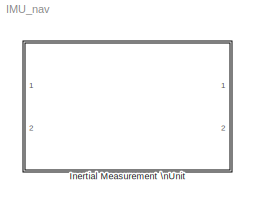
MODEL IMU_nav
KIND model
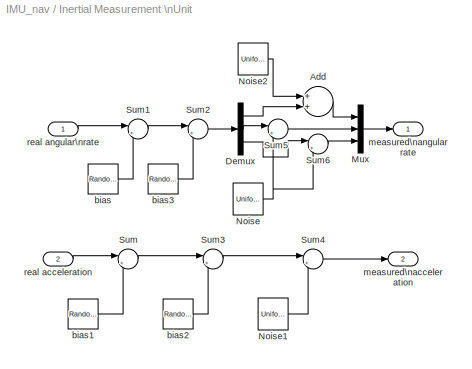
BLOCK [SubSystem] Inertial Measurement \nUnit
  FunctionWithSeparateData = off
  MaskHideContents = off
  MinAlgLoopOccurrences = off
  Opaque = off
  Ports = [2, 2]
  PropExecContextOutsideSubsystem = off
  RTWSystemCode = Auto
  RequestExecContextInheritance = off
  SID = 1
BLOCK [Sum] Inertial Measurement \nUnit/Add
  InputSameDT = off
  OutDataTypeStr = Inherit: Inherit via internal rule
  Ports = [2, 1]
  SID = 30
  SaturateOnIntegerOverflow = off
BLOCK [Demux] Inertial Measurement \nUnit/Demux
  DisplayOption = bar
  Outputs = 3
  Ports = [1, 3]
  SID = 11
BLOCK [Mux] Inertial Measurement \nUnit/Mux
  DisplayOption = bar
  Inputs = 3
  Ports = [3, 1]
  SID = 12
BLOCK [UniformRandomNumber] Inertial Measurement \nUnit/Noise
  Maximum = GYRO.noise_pith
  Minimum = -GYRO.noise_pith
  SID = 6
  SampleTime = TSample
  Seed = 346
BLOCK [UniformRandomNumber] Inertial Measurement \nUnit/Noise1
  Maximum = ACCEL.noise
  Minimum = -ACCEL.noise
  SID = 17
  SampleTime = TSample
  Seed = 134
BLOCK [UniformRandomNumber] Inertial Measurement \nUnit/Noise2
  Maximum = GYRO.noise_roll
  Minimum = -GYRO.noise_roll
  SID = 28
  SampleTime = TSample
  Seed = 98
BLOCK [Sum] Inertial Measurement \nUnit/Sum
  IconShape = round
  InputSameDT = off
  Inputs = |++
  OutDataTypeStr = Inherit: Inherit via internal rule
  Ports = [2, 1]
  SID = 8
  SaturateOnIntegerOverflow = off
BLOCK [Sum] Inertial Measurement \nUnit/Sum1
  IconShape = round
  InputSameDT = off
  Inputs = |++
  OutDataTypeStr = Inherit: Inherit via internal rule
  Ports = [2, 1]
  SID = 9
  SaturateOnIntegerOverflow = off
BLOCK [Sum] Inertial Measurement \nUnit/Sum2
  IconShape = round
  InputSameDT = off
  Inputs = |++
  OutDataTypeStr = Inherit: Inherit via internal rule
  Ports = [2, 1]
  SID = 10
  SaturateOnIntegerOverflow = off
BLOCK [Sum] Inertial Measurement \nUnit/Sum3
  IconShape = round
  InputSameDT = off
  Inputs = |++
  OutDataTypeStr = Inherit: Inherit via internal rule
  Ports = [2, 1]
  SID = 13
  SaturateOnIntegerOverflow = off
BLOCK [Sum] Inertial Measurement \nUnit/Sum4
  IconShape = round
  InputSameDT = off
  Inputs = |++
  OutDataTypeStr = Inherit: Inherit via internal rule
  Ports = [2, 1]
  SID = 14
  SaturateOnIntegerOverflow = off
BLOCK [Sum] Inertial Measurement \nUnit/Sum5
  IconShape = round
  InputSameDT = off
  Inputs = |++
  OutDataTypeStr = Inherit: Inherit via internal rule
  Ports = [2, 1]
  SID = 26
  SaturateOnIntegerOverflow = off
BLOCK [Sum] Inertial Measurement \nUnit/Sum6
  IconShape = round
  InputSameDT = off
  Inputs = |++
  OutDataTypeStr = Inherit: Inherit via internal rule
  Ports = [2, 1]
  SID = 27
  SaturateOnIntegerOverflow = off
BLOCK [RandomNumber] Inertial Measurement \nUnit/bias
  SID = 7
  SampleTime = TSample
  Seed = 245
  Variance = GYRO.bias_repeat
BLOCK [RandomNumber] Inertial Measurement \nUnit/bias1
  SID = 15
  SampleTime = TSample
  Seed = 43
  Variance = ACCEL.bias_repeat
BLOCK [RandomNumber] Inertial Measurement \nUnit/bias2
  SID = 16
  SampleTime = TSample
  Seed = 472
  Variance = ACCEL.bias_stability
BLOCK [RandomNumber] Inertial Measurement \nUnit/bias3
  SID = 18
  SampleTime = TSample
  Seed = 734
  Variance = GYRO.bias_stability
BLOCK [Outport] Inertial Measurement \nUnit/measured\nacceleration
  IconDisplay = Port number
  Port = 2
  SID = 5
BLOCK [Outport] Inertial Measurement \nUnit/measured\nangular rate
  IconDisplay = Port number
  SID = 3
BLOCK [Inport] Inertial Measurement \nUnit/real acceleration
  IconDisplay = Port number
  Port = 2
  SID = 4
BLOCK [Inport] Inertial Measurement \nUnit/real angular\nrate
  IconDisplay = Port number
  SID = 2
LINE Inertial Measurement \nUnit/Add:1 -> Inertial Measurement \nUnit/Mux:1
LINE Inertial Measurement \nUnit/Demux:1 -> Inertial Measurement \nUnit/Add:2
LINE Inertial Measurement \nUnit/Demux:2 -> Inertial Measurement \nUnit/Sum5:1
LINE Inertial Measurement \nUnit/Demux:3 -> Inertial Measurement \nUnit/Sum6:1
LINE Inertial Measurement \nUnit/Mux:1 -> Inertial Measurement \nUnit/measured\nangular rate:1
LINE Inertial Measurement \nUnit/Noise1:1 -> Inertial Measurement \nUnit/Sum4:2
LINE Inertial Measurement \nUnit/Noise2:1 -> Inertial Measurement \nUnit/Add:1
NET Inertial Measurement \nUnit/Noise:1 -> Inertial Measurement \nUnit/Sum5:2, Inertial Measurement \nUnit/Sum6:2
LINE Inertial Measurement \nUnit/Sum1:1 -> Inertial Measurement \nUnit/Sum2:1
LINE Inertial Measurement \nUnit/Sum2:1 -> Inertial Measurement \nUnit/Demux:1
LINE Inertial Measurement \nUnit/Sum3:1 -> Inertial Measurement \nUnit/Sum4:1
LINE Inertial Measurement \nUnit/Sum4:1 -> Inertial Measurement \nUnit/measured\nacceleration:1
LINE Inertial Measurement \nUnit/Sum5:1 -> Inertial Measurement \nUnit/Mux:2
LINE Inertial Measurement \nUnit/Sum6:1 -> Inertial Measurement \nUnit/Mux:3
LINE Inertial Measurement \nUnit/Sum:1 -> Inertial Measurement \nUnit/Sum3:1
LINE Inertial Measurement \nUnit/bias1:1 -> Inertial Measurement \nUnit/Sum:2
LINE Inertial Measurement \nUnit/bias2:1 -> Inertial Measurement \nUnit/Sum3:2
LINE Inertial Measurement \nUnit/bias3:1 -> Inertial Measurement \nUnit/Sum2:2
LINE Inertial Measurement \nUnit/bias:1 -> Inertial Measurement \nUnit/Sum1:2
LINE Inertial Measurement \nUnit/real acceleration:1 -> Inertial Measurement \nUnit/Sum:1
LINE Inertial Measurement \nUnit/real angular\nrate:1 -> Inertial Measurement \nUnit/Sum1:1
note: NET lines group one-source signal fan-out (src -> all destinations, sorted); 1:1 wires keep LINE
